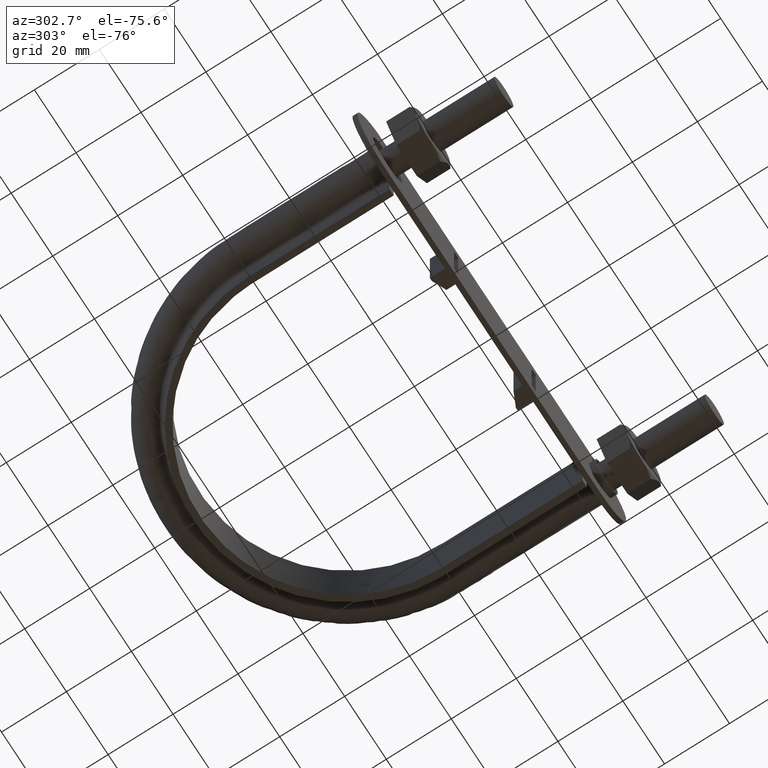
[diagram: clean part render]
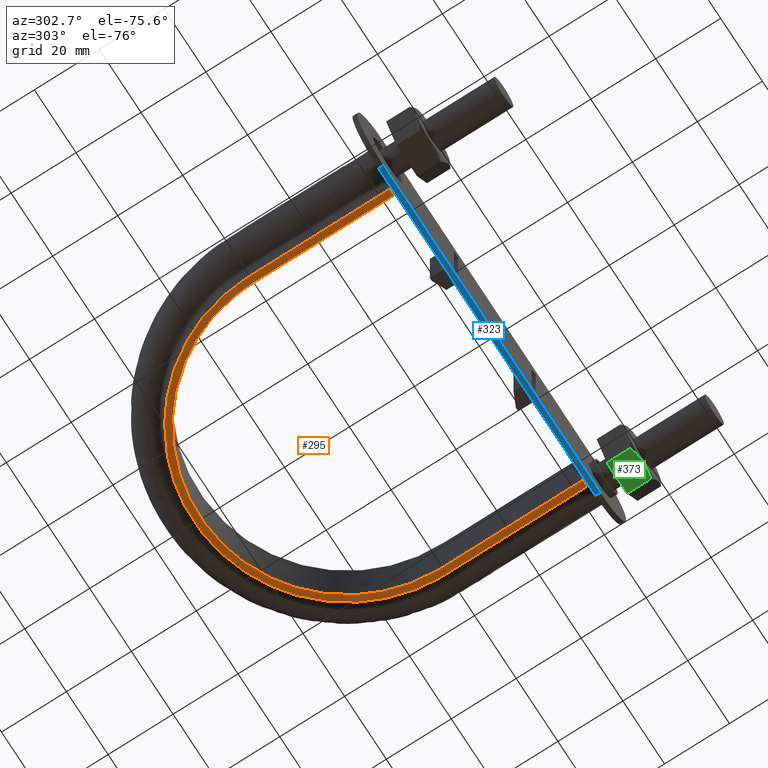
[diagram: same view with three faces highlighted in distinct colors, each labeled with its STEP entity id]
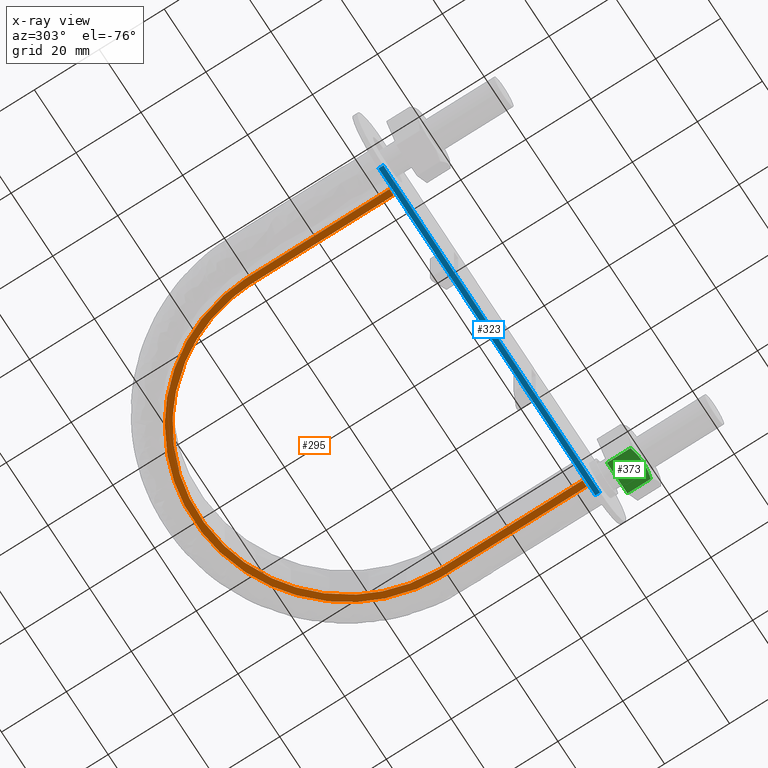
[diagram: x-ray of the same camera — body ghosted, the three highlighted faces saturated]
A machine part, auxiliary view with three faces highlighted in distinct colors.
The next image is the same camera in x-ray (body ghosted, the three faces saturated) — at least one of them is partly hidden behind the body in this view.
Their STEP definitions:

[orange] entity #295 — the highlighted planar face has unit normal (0, 0, 1).
#295 = ADVANCED_FACE( '', ( #444 ), #445, .F. );
#444 = FACE_OUTER_BOUND( '', #1352, .T. );
#445 = PLANE( '', #1353 );
#1352 = EDGE_LOOP( '', ( #1881, #1882, #1883, #1884 ) );
#1353 = AXIS2_PLACEMENT_3D( '', #1885, #1886, #1887 );
#1881 = ORIENTED_EDGE( '', *, *, #2544, .F. );
#1882 = ORIENTED_EDGE( '', *, *, #2542, .F. );
#1883 = ORIENTED_EDGE( '', *, *, #2552, .F. );
#1884 = ORIENTED_EDGE( '', *, *, #2549, .F. );
#1885 = CARTESIAN_POINT( '', ( 60.0000000000000, 147.300000000000, -12.5000000000000 ) );
#1886 = DIRECTION( '', ( 0.000000000000000, 0.000000000000000, 1.00000000000000 ) );
#1887 = DIRECTION( '', ( 1.00000000000000, 0.000000000000000, 0.000000000000000 ) );
#2542 = EDGE_CURVE( '', #2798, #2794, #2800, .T. );
#2544 = EDGE_CURVE( '', #2794, #2803, #2804, .F. );
#2549 = EDGE_CURVE( '', #2803, #2811, #2812, .T. );
#2552 = EDGE_CURVE( '', #2811, #2798, #2816, .F. );
#2794 = VERTEX_POINT( '', #3224 );
#2798 = VERTEX_POINT( '', #3230 );
#2800 = LINE( '', #3262, #3263 );
#2803 = VERTEX_POINT( '', #3275 );
#2804 = B_SPLINE_CURVE_WITH_KNOTS( '', 3, ( #3276, #3277, #3278, #3279, #3280, #3281, #3282, #3283, #3284, #3285, #3286, #3287, #3288, #3289, #3290, #3291 ), .UNSPECIFIED., .F., .F., ( 4, 3, 1, 1, 1, 1, 1, 1, 3, 4 ), ( -8.93133047210300, -8.00000000000000, -7.00000000000000, -6.00000000000000, -5.00000000000000, -4.00000000000000, -3.00000000000000, -2.00000000000000, -1.00000000000000, -0.0686695278969956 ), .UNSPECIFIED. );
#2811 = VERTEX_POINT( '', #3398 );
#2812 = LINE( '', #3399, #3400 );
#2816 = B_SPLINE_CURVE_WITH_KNOTS( '', 3, ( #3443, #3444, #3445, #3446, #3447, #3448, #3449, #3450, #3451, #3452, #3453, #3454, #3455, #3456, #3457, #3458 ), .UNSPECIFIED., .F., .F., ( 4, 3, 1, 1, 1, 1, 1, 1, 3, 4 ), ( 0.0686695278969953, 1.00000000000000, 2.00000000000000, 3.00000000000000, 4.00000000000000, 5.00000000000000, 6.00000000000000, 7.00000000000000, 8.00000000000000, 8.93133047210300 ), .UNSPECIFIED. );
#3224 = CARTESIAN_POINT( '', ( -45.3000000000000, 37.3000000000000, -12.5000000000000 ) );
#3230 = CARTESIAN_POINT( '', ( -47.3000000000000, 37.3000000000000, -12.5000000000000 ) );
#3262 = CARTESIAN_POINT( '', ( -60.0000000000000, 37.3000000000000, -12.5000000000000 ) );
#3263 = VECTOR( '', #4057, 1000.00000000000 );
#3275 = CARTESIAN_POINT( '', ( 45.3000000000000, 37.3000000000000, -12.5000000000000 ) );
#3276 = CARTESIAN_POINT( '', ( 45.3000000000000, 37.3000000000000, -12.5000000000000 ) );
#3277 = CARTESIAN_POINT( '', ( 45.3000000000000, 51.7666666666667, -12.5000000000000 ) );
#3278 = CARTESIAN_POINT( '', ( 45.3000000000000, 66.2333333333333, -12.5000000000000 ) );
#3279 = CARTESIAN_POINT( '', ( 45.3000000000000, 80.7000000000000, -12.5000000000000 ) );
#3280 = CARTESIAN_POINT( '', ( 45.3000000000000, 87.4617942068644, -12.5000000000000 ) );
#3281 = CARTESIAN_POINT( '', ( 42.2071641315033, 101.032157601825, -12.5000000000000 ) );
#3282 = CARTESIAN_POINT( '', ( 29.2082638356160, 117.324357375469, -12.5000000000000 ) );
#3283 = CARTESIAN_POINT( '', ( 10.4243086712368, 126.372209831110, -12.5000000000000 ) );
#3284 = CARTESIAN_POINT( '', ( -10.4243086712368, 126.372209831110, -12.5000000000000 ) );
#3285 = CARTESIAN_POINT( '', ( -29.2082638356159, 117.324357375469, -12.5000000000000 ) );
#3286 = CARTESIAN_POINT( '', ( -42.2071641315033, 101.032157601825, -12.5000000000000 ) );
#3287 = CARTESIAN_POINT( '', ( -45.3000000000000, 87.4617942068644, -12.5000000000000 ) );
#3288 = CARTESIAN_POINT( '', ( -45.3000000000000, 80.7000000000000, -12.5000000000000 ) );
#3289 = CARTESIAN_POINT( '', ( -45.3000000000000, 66.2333333333333, -12.5000000000000 ) );
#3290 = CARTESIAN_POINT( '', ( -45.3000000000000, 51.7666666666667, -12.5000000000000 ) );
#3291 = CARTESIAN_POINT( '', ( -45.3000000000000, 37.3000000000000, -12.5000000000000 ) );
#3398 = CARTESIAN_POINT( '', ( 47.3000000000000, 37.3000000000000, -12.5000000000000 ) );
#3399 = CARTESIAN_POINT( '', ( -60.0000000000000, 37.3000000000000, -12.5000000000000 ) );
#3400 = VECTOR( '', #4060, 1000.00000000000 );
#3443 = CARTESIAN_POINT( '', ( -47.3000000000000, 37.3000000000000, -12.5000000000000 ) );
#3444 = CARTESIAN_POINT( '', ( -47.3000000000000, 51.7666666666667, -12.5000000000000 ) );
#3445 = CARTESIAN_POINT( '', ( -47.3000000000000, 66.2333333333334, -12.5000000000000 ) );
#3446 = CARTESIAN_POINT( '', ( -47.3000000000000, 80.7000000000000, -12.5000000000000 ) );
#3447 = CARTESIAN_POINT( '', ( -47.3000000000000, 87.7661188393846, -12.5000000000000 ) );
#3448 = CARTESIAN_POINT( '', ( -44.0706150865365, 101.927141121989, -12.5000000000000 ) );
#3449 = CARTESIAN_POINT( '', ( -30.4978119078285, 118.942032975526, -12.5000000000000 ) );
#3450 = CARTESIAN_POINT( '', ( -10.8845430496578, 128.388501700335, -12.5000000000000 ) );
#3451 = CARTESIAN_POINT( '', ( 10.8845430496579, 128.388501700335, -12.5000000000000 ) );
#3452 = CARTESIAN_POINT( '', ( 30.4978119078286, 118.942032975526, -12.5000000000000 ) );
#3453 = CARTESIAN_POINT( '', ( 44.0706150865366, 101.927141121989, -12.5000000000000 ) );
#3454 = CARTESIAN_POINT( '', ( 47.3000000000000, 87.7661188393846, -12.5000000000000 ) );
#3455 = CARTESIAN_POINT( '', ( 47.3000000000000, 80.7000000000000, -12.5000000000000 ) );
#3456 = CARTESIAN_POINT( '', ( 47.3000000000000, 66.2333333333334, -12.5000000000000 ) );
#3457 = CARTESIAN_POINT( '', ( 47.3000000000000, 51.7666666666666, -12.5000000000000 ) );
#3458 = CARTESIAN_POINT( '', ( 47.3000000000000, 37.3000000000000, -12.5000000000000 ) );
#4057 = DIRECTION( '', ( 1.00000000000000, -1.83649404852125E-048, 0.000000000000000 ) );
#4060 = DIRECTION( '', ( 1.00000000000000, -1.83649404852125E-048, 0.000000000000000 ) );

[blue] entity #323 — the highlighted planar face has unit normal (-0, -0, -1).
#323 = ADVANCED_FACE( '', ( #510 ), #511, .T. );
#510 = FACE_OUTER_BOUND( '', #1577, .T. );
#511 = PLANE( '', #1578 );
#1577 = EDGE_LOOP( '', ( #2098, #2099, #2100, #2101 ) );
#1578 = AXIS2_PLACEMENT_3D( '', #2102, #2103, #2104 );
#2098 = ORIENTED_EDGE( '', *, *, #2596, .F. );
#2099 = ORIENTED_EDGE( '', *, *, #2622, .F. );
#2100 = ORIENTED_EDGE( '', *, *, #2554, .T. );
#2101 = ORIENTED_EDGE( '', *, *, #2620, .T. );
#2102 = CARTESIAN_POINT( '', ( 50.4999999992658, 35.2000000000016, -12.5000000029665 ) );
#2103 = DIRECTION( '', ( -5.87450643685463E-011, -6.03659968927761E-014, -1.00000000000000 ) );
#2104 = DIRECTION( '', ( -1.00000000000000, 7.80212223236574E-040, 5.87450643685463E-011 ) );
#2554 = EDGE_CURVE( '', #2820, #2817, #2821, .F. );
#2596 = EDGE_CURVE( '', #2892, #2887, #2894, .T. );
#2620 = EDGE_CURVE( '', #2817, #2887, #2934, .T. );
#2622 = EDGE_CURVE( '', #2820, #2892, #2936, .T. );
#2817 = VERTEX_POINT( '', #3459 );
#2820 = VERTEX_POINT( '', #3462 );
#2821 = LINE( '', #3463, #3464 );
#2887 = VERTEX_POINT( '', #3561 );
#2892 = VERTEX_POINT( '', #3567 );
#2894 = LINE( '', #3569, #3570 );
#2934 = LINE( '', #3631, #3632 );
#2936 = LINE( '', #3635, #3636 );
#3459 = CARTESIAN_POINT( '', ( -53.5000000007343, 35.1999999999967, -12.4999999968571 ) );
#3462 = CARTESIAN_POINT( '', ( 50.4999999992658, 35.1999999999967, -12.5000000029665 ) );
#3463 = CARTESIAN_POINT( '', ( 50.4999999992658, 35.1999999999967, -12.5000000029665 ) );
#3464 = VECTOR( '', #4064, 1000.00000000000 );
#3561 = CARTESIAN_POINT( '', ( -53.5000000007344, 36.6999999999967, -12.4999999968571 ) );
#3567 = CARTESIAN_POINT( '', ( 50.4999999992657, 36.6999999999967, -12.5000000029666 ) );
#3569 = CARTESIAN_POINT( '', ( -53.5000000007343, 36.6999999999967, -12.4999999968571 ) );
#3570 = VECTOR( '', #4124, 1000.00000000000 );
#3631 = CARTESIAN_POINT( '', ( -53.5000000007343, 35.1999999999967, -12.4999999968571 ) );
#3632 = VECTOR( '', #4152, 1000.00000000000 );
#3635 = CARTESIAN_POINT( '', ( 50.4999999992658, 35.2000000000016, -12.5000000029665 ) );
#3636 = VECTOR( '', #4154, 1000.00000000000 );
#4064 = DIRECTION( '', ( 1.00000000000000, -3.54904285531665E-024, -5.87450643685463E-011 ) );
#4124 = DIRECTION( '', ( -1.00000000000000, 3.54904285531665E-024, 5.87450643685463E-011 ) );
#4152 = DIRECTION( '', ( -4.70212120677648E-014, 1.00000000000000, -6.03659968900138E-014 ) );
#4154 = DIRECTION( '', ( -4.70212120677648E-014, 1.00000000000000, -6.03659968900138E-014 ) );

[green] entity #373 — the highlighted planar face has unit normal (-0, -0, 1).
#373 = ADVANCED_FACE( '', ( #621 ), #622, .F. );
#621 = FACE_OUTER_BOUND( '', #1688, .T. );
#622 = PLANE( '', #1689 );
#1688 = EDGE_LOOP( '', ( #2470, #2471, #2472, #2473, #2474 ) );
#1689 = AXIS2_PLACEMENT_3D( '', #2475, #2476, #2477 );
#2470 = ORIENTED_EDGE( '', *, *, #2720, .F. );
#2471 = ORIENTED_EDGE( '', *, *, #2734, .F. );
#2472 = ORIENTED_EDGE( '', *, *, #2715, .F. );
#2473 = ORIENTED_EDGE( '', *, *, #2712, .F. );
#2474 = ORIENTED_EDGE( '', *, *, #2736, .F. );
#2475 = CARTESIAN_POINT( '', ( 55.4074772876116, 30.0000000000000, -8.50000000028616 ) );
#2476 = DIRECTION( '', ( -3.59677962511268E-027, -6.12268667163971E-017, 1.00000000000000 ) );
#2477 = DIRECTION( '', ( 1.00000000000000, -5.87451198796921E-011, 7.17464813734306E-043 ) );
#2712 = EDGE_CURVE( '', #3087, #3071, #3089, .T. );
#2715 = EDGE_CURVE( '', #3071, #3090, #3094, .T. );
#2720 = EDGE_CURVE( '', #3100, #3102, #3103, .T. );
#2734 = EDGE_CURVE( '', #3090, #3100, #3122, .T. );
#2736 = EDGE_CURVE( '', #3102, #3087, #3124, .F. );
#3071 = VERTEX_POINT( '', #3890 );
#3087 = VERTEX_POINT( '', #3910 );
#3089 = LINE( '', #3912, #3913 );
#3090 = VERTEX_POINT( '', #3914 );
#3094 = LINE( '', #3919, #3920 );
#3100 = VERTEX_POINT( '', #3931 );
#3102 = VERTEX_POINT( '', #3933 );
#3103 = B_SPLINE_CURVE_WITH_KNOTS( '', 3, ( #3934, #3935, #3936, #3937, #3938, #3939 ), .UNSPECIFIED., .F., .F., ( 4, 2, 4 ), ( 2.21492104830046E-013, 0.00246745482913322, 0.00493490965804495 ), .UNSPECIFIED. );
#3122 = B_SPLINE_CURVE_WITH_KNOTS( '', 3, ( #3981, #3982, #3983, #3984, #3985, #3986 ), .UNSPECIFIED., .F., .F., ( 4, 2, 4 ), ( 9.53870465084821E-013, 0.00246745482948241, 0.00493490965801096 ), .UNSPECIFIED. );
#3124 = LINE( '', #3989, #3990 );
#3890 = CARTESIAN_POINT( '', ( 45.6225006411992, 30.0000000000000, -8.50000000028616 ) );
#3910 = CARTESIAN_POINT( '', ( 55.3774993588008, 30.0000000000000, -8.50000000028616 ) );
#3912 = CARTESIAN_POINT( '', ( 55.3999999995005, 30.0000000000000, -8.50000000028616 ) );
#3913 = VECTOR( '', #4295, 1000.00000000000 );
#3914 = CARTESIAN_POINT( '', ( 45.6225006411992, 22.7505553499469, -8.50000000028616 ) );
#3919 = CARTESIAN_POINT( '', ( 45.6225006411992, 30.0000000000000, -8.50000000028616 ) );
#3920 = VECTOR( '', #4300, 1000.00000000000 );
#3931 = CARTESIAN_POINT( '', ( 50.4999999997504, 22.0000000000005, -8.50000000014235 ) );
#3933 = CARTESIAN_POINT( '', ( 55.3774993588016, 22.7505553499471, -8.50000000028616 ) );
#3934 = CARTESIAN_POINT( '', ( 50.4999999995007, 22.0000000001666, -8.50000000028616 ) );
#3935 = CARTESIAN_POINT( '', ( 51.3321659496496, 22.0000000001383, -8.50000000028616 ) );
#3936 = CARTESIAN_POINT( '', ( 52.1533062473268, 22.0716504306548, -8.50000000028616 ) );
#3937 = CARTESIAN_POINT( '', ( 53.7774431752296, 22.3328582844376, -8.50000000028616 ) );
#3938 = CARTESIAN_POINT( '', ( 54.5805717062102, 22.5215585493996, -8.50000000028616 ) );
#3939 = CARTESIAN_POINT( '', ( 55.3774993588025, 22.7505553499474, -8.50000000028616 ) );
#3981 = CARTESIAN_POINT( '', ( 45.6225006402750, 22.7505553502125, -8.50000000028616 ) );
#3982 = CARTESIAN_POINT( '', ( 46.4194282927331, 22.5215585496706, -8.50000000028616 ) );
#3983 = CARTESIAN_POINT( '', ( 47.2225568245127, 22.3328582844980, -8.50000000028616 ) );
#3984 = CARTESIAN_POINT( '', ( 48.8466937521569, 22.0716504307189, -8.50000000028616 ) );
#3985 = CARTESIAN_POINT( '', ( 49.6678340494826, 22.0000000001948, -8.50000000028616 ) );
#3986 = CARTESIAN_POINT( '', ( 50.4999999995007, 22.0000000001666, -8.50000000028616 ) );
#3989 = CARTESIAN_POINT( '', ( 55.3774993588008, 30.0000000000000, -8.50000000028616 ) );
#3990 = VECTOR( '', #4332, 1000.00000000000 );
#4295 = DIRECTION( '', ( -1.00000000000000, 2.44921270764475E-016, -3.59676462935068E-027 ) );
#4300 = DIRECTION( '', ( -2.44921270764475E-016, -1.00000000000000, -6.12303176911190E-017 ) );
#4332 = DIRECTION( '', ( -2.44921270764475E-016, -1.00000000000000, -6.12303176911190E-017 ) );